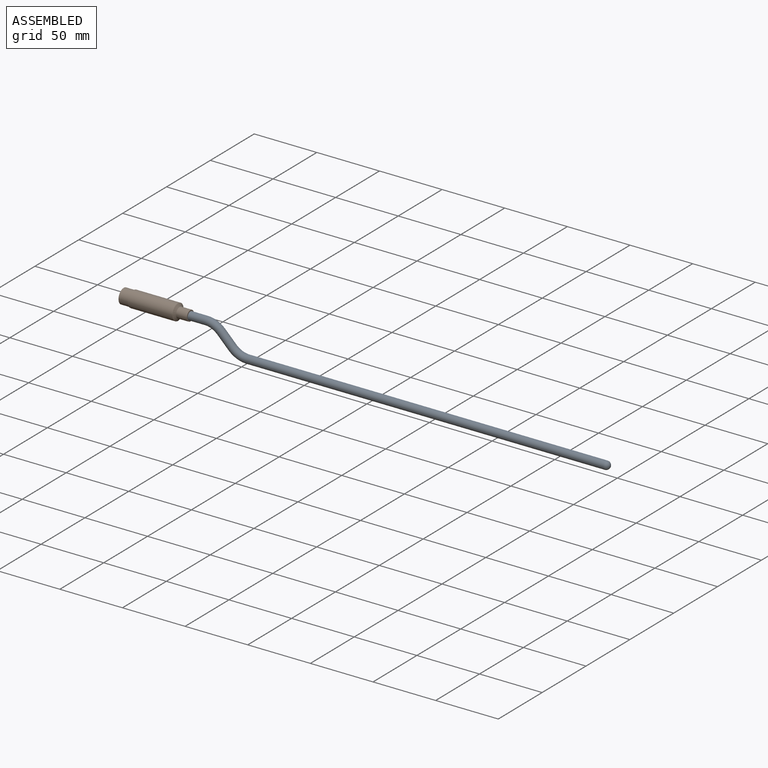
[diagram: assembled view]
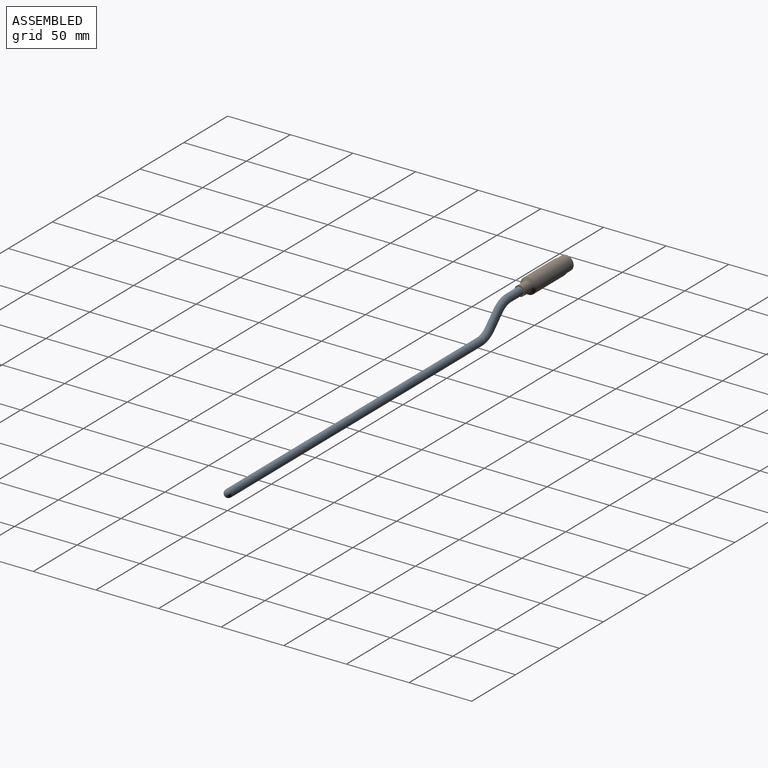
[diagram: assembled view, second angle]
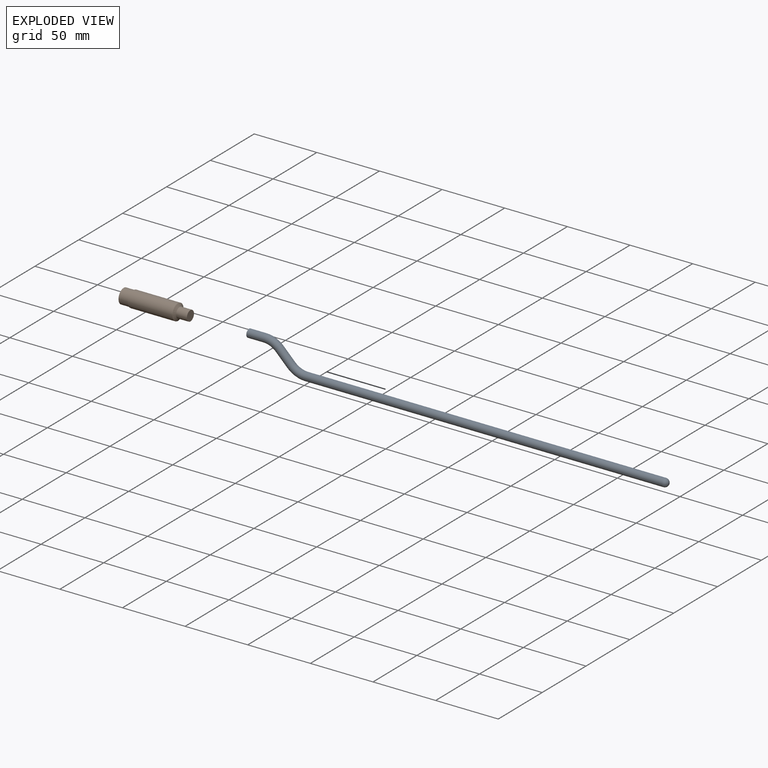
[diagram: exploded view]
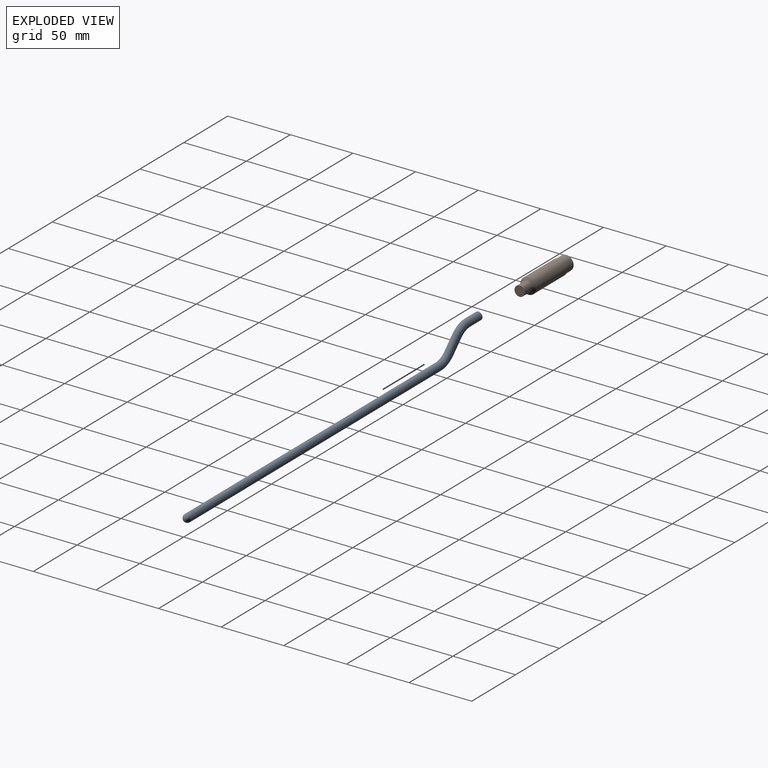
[diagram: exploded view, second angle]
ASSEMBLY  parts=2 mates=2
PART A: 7 faces, bbox 335.1x6.4x28.8 mm
  f0: plane 6.35x6.35mm, normal (-1,0,0), area 31.7mm2, adj f5
  f1: cylinder r=3.17mm len=285.83mm, axis (-1,0,0), area 5702mm2, adj f2,f6
  f2: torus R=17.7mm, axis (0,1,0), area 277.3mm2, adj f1,f3
  f3: cylinder r=3.17mm len=13.42mm, axis (-0.71,0,0.71), area 252mm2, adj f2,f4
  f4: torus R=16.85mm, axis (0,-1,0), area 264mm2, adj f3,f5
  f5: cylinder r=3.17mm len=12.7mm, axis (-1,0,0), area 253.4mm2, adj f0,f4
  f6: sphere r=3.17mm, area 63.3mm2, adj f1
PART B: 7 faces, bbox 53.3x12.7x12.7 mm
  f0: plane 11.68x11.68mm, normal (-1,0,0), area 107.2mm2, adj f6
  f1: plane 8.13x8.13mm, normal (1,0,0), area 51.9mm2, adj f2
  f2: cylinder r=4.06mm len=8.64mm, axis (-1,0,0), area 220.5mm2, adj f1,f3
  f3: cone r=4.06mm half-angle=60deg, axis (-1,0,0), area 86.4mm2, adj f2,f4
  f4: cylinder r=6.35mm len=35.51mm, axis (-1,0,0), area 1416.8mm2, adj f3,f5
  f5: plane 12.7x12.7mm, normal (-1,0,0), area 19.5mm2, adj f4,f6
  f6: cylinder r=5.84mm len=11.68mm, axis (-1,0,0), area 289mm2, adj f0,f5
PLACE A t=(21.89,-3.68,-39.71)mm
PLACE B t=(-220.59,-3.68,-54.85)mm
MATE planar B.f2 <-> A.f5  axis (1,0,0) through (-138.23,-3.68,42.46)mm
MATE slider B.f2 <-> A.f5  axis (1,0,0) through (-138.23,-3.68,42.46)mm
